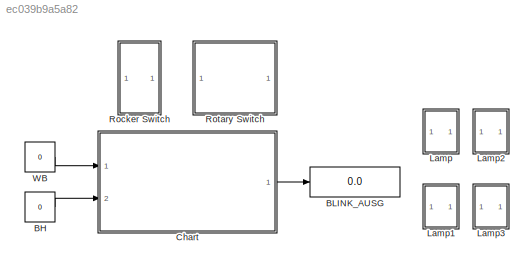
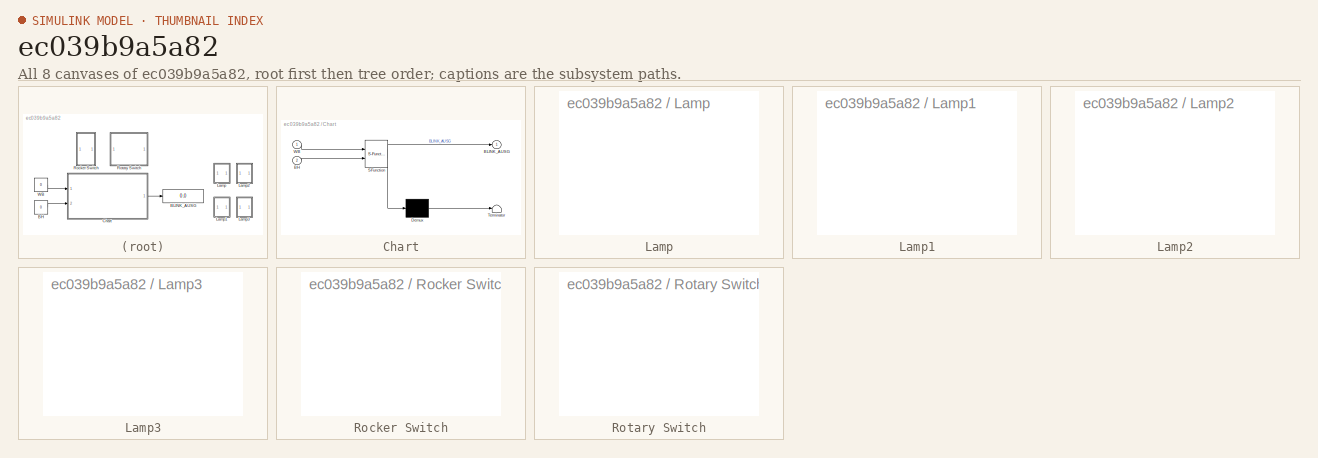
[diagram: thumbnail index - all 8 canvases of the model, root first then tree order]
MODEL slx_ec039b9a5a82
KIND model
CONFIG AbsTol = auto
CONFIG FixedStep = auto
CONFIG MaxStep = auto
CONFIG MinStep = auto
CONFIG RelTol = 1e-3
CONFIG SampleTimeConstraint = Unconstrained
CONFIG Solver = VariableStepAuto
CONFIG SolverMode = Auto
CONFIG SolverName = VariableStepAuto
CONFIG StartTime = 0.0
CONFIG StopTime = inf
BLOCK [Constant] BH
  Value = 0
BLOCK [Display] BLINK_AUSG 
  Decimation = 1
  Ports = [1]
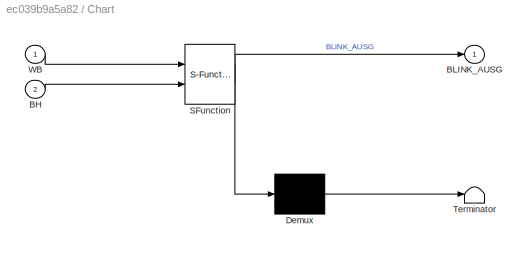
BLOCK [SubSystem] Chart
  ErrorFcn = Stateflow.Translate.translate
  PermitHierarchicalResolution = ExplicitOnly
  Ports = [2, 1]
  RequestExecContextInheritance = off
  SFBlockType = Chart
  TreatAsAtomicUnit = on
  Variant = off
BLOCK [Demux] Chart/ Demux 
  Outputs = 1
  Ports = [1, 1]
BLOCK [S-Function] Chart/ SFunction 
  EnableBusSupport = on
  FunctionName = sf_sfun
  PortCounts = [2 2]
  Ports = [2, 2]
  SFunctionDeploymentMode = off
  Tag = Stateflow S-Function blinker 3
BLOCK [Terminator] Chart/ Terminator 
BLOCK [Inport] Chart/BH
  IconDisplay = Port number
  Port = 2
BLOCK [Outport] Chart/BLINK_AUSG
  IconDisplay = Port number
BLOCK [Inport] Chart/WB
  IconDisplay = Port number
BLOCK [SubSystem] Lamp
  DialogController = hmiCreateDDGDialog
  IsWebBlock = on
  MaskHideContents = on
  Ports = []
  RequestExecContextInheritance = off
  Variant = off
BLOCK [SubSystem] Lamp1
  DialogController = hmiCreateDDGDialog
  IsWebBlock = on
  MaskHideContents = on
  Ports = []
  RequestExecContextInheritance = off
  Variant = off
BLOCK [SubSystem] Lamp2
  DialogController = hmiCreateDDGDialog
  IsWebBlock = on
  MaskHideContents = on
  Ports = []
  RequestExecContextInheritance = off
  Variant = off
BLOCK [SubSystem] Lamp3
  DialogController = hmiCreateDDGDialog
  IsWebBlock = on
  MaskHideContents = on
  Ports = []
  RequestExecContextInheritance = off
  Variant = off
BLOCK [SubSystem] Rocker Switch
  DialogController = hmiCreateDDGDialog
  IsWebBlock = on
  MaskHideContents = on
  Ports = []
  RequestExecContextInheritance = off
  Variant = off
BLOCK [SubSystem] Rotary Switch
  DialogController = hmiCreateDDGDialog
  IsWebBlock = on
  MaskHideContents = on
  Ports = []
  RequestExecContextInheritance = off
  Variant = off
BLOCK [Constant] WB
  Value = 0
LINE BH:1 -> Chart:2
LINE Chart:1 -> BLINK_AUSG :1
LINE WB:1 -> Chart:1
CHART Chart states=4 transitions=17
  STATE_LABEL 'AUS/\nentry: BLINK_AUSG=0;\n local=0;'
  STATE_LABEL 'LINKS/\nentry: BLINK_AUSG=1;'
  STATE_LABEL 'RECHTS/\nentry: BLINK_AUSG=2;'
  STATE_LABEL 'WB_AN/\nentry: BLINK_AUSG=3;'
